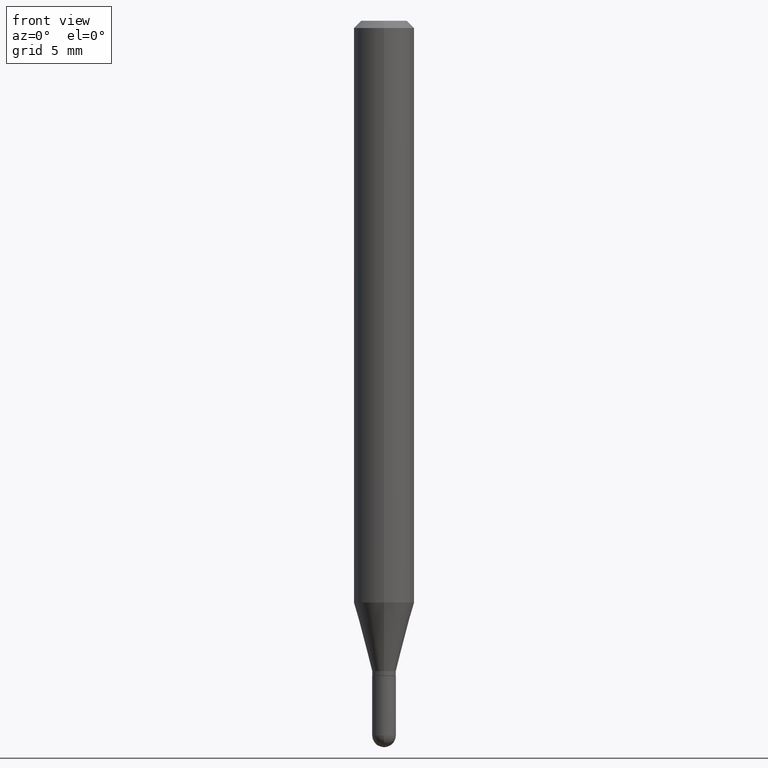
[diagram: clean part render]
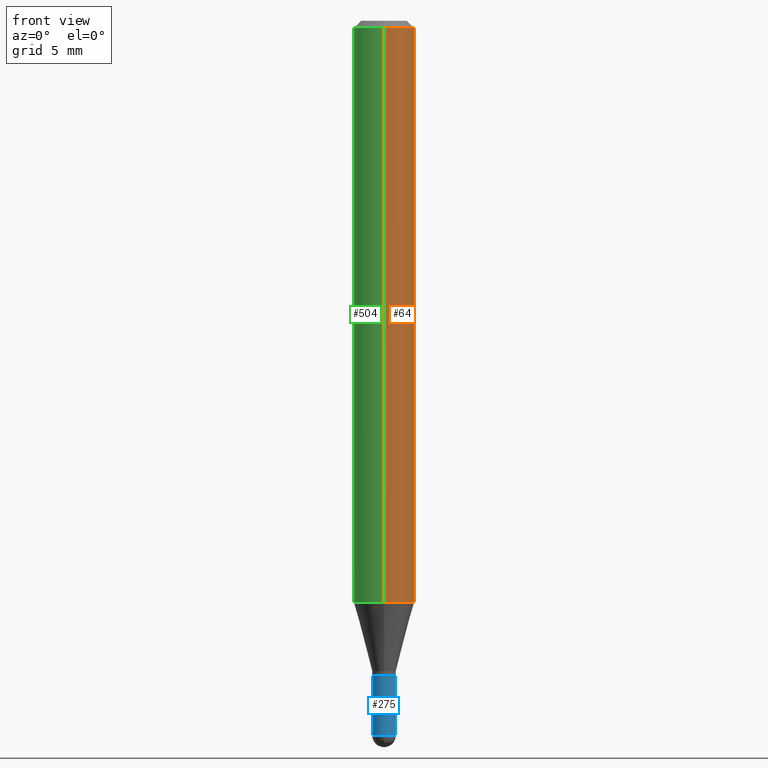
[diagram: same view with three faces highlighted in distinct colors, each labeled with its STEP entity id]
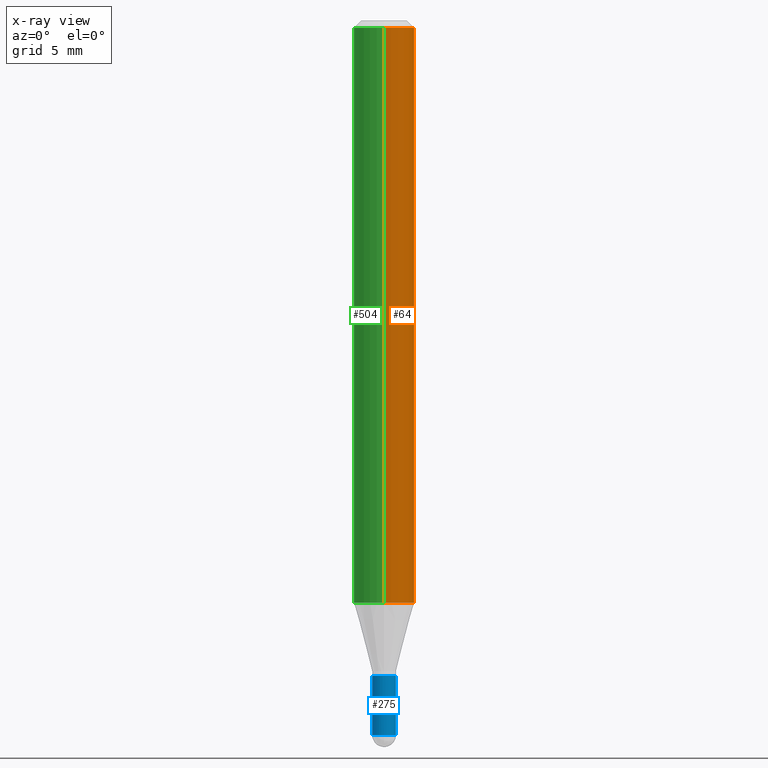
[diagram: x-ray of the same camera — body ghosted, the three highlighted faces saturated]
A machine part, front view with three faces highlighted in distinct colors.
The next image is the same camera in x-ray (body ghosted, the three faces saturated) — at least one of them is partly hidden behind the body in this view.
Their STEP definitions:

[orange] entity #64 — the highlighted cylindrical surface (edge-blend (fillet) strip) has radius 1.5875 mm, axis along (-0, 0, 1).
#24 = VERTEX_POINT ( 'NONE', #389 ) ;
#32 = AXIS2_PLACEMENT_3D ( 'NONE', #330, #252, #124 ) ;
#45 = FACE_OUTER_BOUND ( 'NONE', #405, .T. ) ;
#64 = ADVANCED_FACE ( 'NONE', ( #45 ), #160, .T. ) ;
#92 = DIRECTION ( 'NONE',  ( -2.445471927444732928E-29, 3.491476869021752385E-15, 1.000000000000000000 ) ) ;
#98 = CARTESIAN_POINT ( 'NONE',  ( -4.364351673553916201E-16, -0.06250000000000000000, 2.182173043138594994E-16 ) ) ;
#116 = DIRECTION ( 'NONE',  ( -2.445471927444732928E-29, 3.491476869021752385E-15, 1.000000000000000000 ) ) ;
#124 = DIRECTION ( 'NONE',  ( -6.982962677686265922E-15, -1.000000000000000000, 3.483106191921935554E-15 ) ) ;
#144 = CIRCLE ( 'NONE', #487, 0.06250000000000000000 ) ;
#156 = EDGE_CURVE ( 'NONE', #205, #314, #144, .T. ) ;
#160 = CYLINDRICAL_SURFACE ( 'NONE', #349, 0.06250000000000000000 ) ;
#167 = EDGE_CURVE ( 'NONE', #314, #238, #269, .T. ) ;
#190 = CARTESIAN_POINT ( 'NONE',  ( 4.440892098500625669E-16, 0.06250000000000000000, -2.182173043138594994E-16 ) ) ;
#199 = EDGE_CURVE ( 'NONE', #24, #238, #307, .T. ) ;
#205 = VERTEX_POINT ( 'NONE', #324 ) ;
#206 = CARTESIAN_POINT ( 'NONE',  ( 4.440892098500920998E-16, 0.06249999999999995143, -0.01500000000000054588 ) ) ;
#234 = VECTOR ( 'NONE', #342, 39.37007874015748143 ) ;
#238 = VERTEX_POINT ( 'NONE', #206 ) ;
#252 = DIRECTION ( 'NONE',  ( -2.445471927444732928E-29, 3.491476869021752385E-15, 1.000000000000000000 ) ) ;
#269 = LINE ( 'NONE', #190, #234 ) ;
#276 = ORIENTED_EDGE ( 'NONE', *, *, #406, .F. ) ;
#278 = DIRECTION ( 'NONE',  ( -6.982962677686265922E-15, -1.000000000000000000, 3.491476869021751991E-15 ) ) ;
#297 = LINE ( 'NONE', #98, #302 ) ;
#302 = VECTOR ( 'NONE', #458, 39.37007874015748143 ) ;
#307 = CIRCLE ( 'NONE', #32, 0.06250000000000000000 ) ;
#313 = CARTESIAN_POINT ( 'NONE',  ( 0.000000000000000000, 0.000000000000000000, 0.000000000000000000 ) ) ;
#314 = VERTEX_POINT ( 'NONE', #413 ) ;
#324 = CARTESIAN_POINT ( 'NONE',  ( -4.364351673553624323E-16, -0.06250000000000420497, -1.201182069312383138 ) ) ;
#330 = CARTESIAN_POINT ( 'NONE',  ( 3.668207891167179599E-31, -5.237215303532743381E-17, -0.01500000000000032904 ) ) ;
#342 = DIRECTION ( 'NONE',  ( -2.445471927444732928E-29, 3.491476869021752385E-15, 1.000000000000000000 ) ) ;
#349 = AXIS2_PLACEMENT_3D ( 'NONE', #313, #116, #278 ) ;
#389 = CARTESIAN_POINT ( 'NONE',  ( -4.364351673553912750E-16, -0.06250000000000005551, -0.01500000000000011047 ) ) ;
#405 = EDGE_LOOP ( 'NONE', ( #434, #423, #438, #276 ) ) ;
#406 = EDGE_CURVE ( 'NONE', #205, #24, #297, .T. ) ;
#413 = CARTESIAN_POINT ( 'NONE',  ( 4.440892098500917054E-16, 0.06249999999999578809, -1.201182069312383804 ) ) ;
#421 = DIRECTION ( 'NONE',  ( -6.982962677686265922E-15, -1.000000000000000000, 4.370956789862821150E-15 ) ) ;
#423 = ORIENTED_EDGE ( 'NONE', *, *, #167, .T. ) ;
#434 = ORIENTED_EDGE ( 'NONE', *, *, #156, .T. ) ;
#438 = ORIENTED_EDGE ( 'NONE', *, *, #199, .F. ) ;
#458 = DIRECTION ( 'NONE',  ( -2.445471927444732928E-29, 3.491476869021752385E-15, 1.000000000000000000 ) ) ;
#487 = AXIS2_PLACEMENT_3D ( 'NONE', #489, #92, #421 ) ;
#489 = CARTESIAN_POINT ( 'NONE',  ( 2.937457030253406908E-29, -4.193899410487870118E-15, -1.201182069312383360 ) ) ;

[blue] entity #275 — the highlighted cylindrical surface (edge-blend (fillet) strip) has radius 0.6223 mm, axis along (-0, 0, 1).
#31 = ORIENTED_EDGE ( 'NONE', *, *, #408, .T. ) ;
#34 = VERTEX_POINT ( 'NONE', #311 ) ;
#44 = DIRECTION ( 'NONE',  ( -2.445468806185136877E-29, 3.491481338843145188E-15, 1.000000000000000000 ) ) ;
#66 = VECTOR ( 'NONE', #162, 39.37007874015748143 ) ;
#69 = DIRECTION ( 'NONE',  ( -2.445468806185136597E-29, 3.491481338843145583E-15, 1.000000000000000000 ) ) ;
#73 = CIRCLE ( 'NONE', #151, 0.02450000000000000441 ) ;
#113 = VERTEX_POINT ( 'NONE', #287 ) ;
#114 = VERTEX_POINT ( 'NONE', #329 ) ;
#115 = VECTOR ( 'NONE', #44, 39.37007874015748143 ) ;
#127 = LINE ( 'NONE', #201, #66 ) ;
#151 = AXIS2_PLACEMENT_3D ( 'NONE', #178, #339, #424 ) ;
#162 = DIRECTION ( 'NONE',  ( -2.445468806185136877E-29, 3.491481338843145188E-15, 1.000000000000000000 ) ) ;
#178 = CARTESIAN_POINT ( 'NONE',  ( 3.608289223526169394E-29, -5.151680715463062135E-15, -1.475500000000000256 ) ) ;
#189 = EDGE_CURVE ( 'NONE', #34, #512, #362, .T. ) ;
#196 = ORIENTED_EDGE ( 'NONE', *, *, #221, .T. ) ;
#201 = CARTESIAN_POINT ( 'NONE',  ( -0.02450000000000000441, 1.740829702612245769E-16, -1.205139097112452116E-30 ) ) ;
#204 = DIRECTION ( 'NONE',  ( 1.000000000000000000, -6.982962677686267499E-15, 4.876176775795936353E-29 ) ) ;
#208 = EDGE_CURVE ( 'NONE', #34, #114, #127, .T. ) ;
#210 = DIRECTION ( 'NONE',  ( -2.445468806185136597E-29, 3.491481338843145583E-15, 1.000000000000000000 ) ) ;
#221 = EDGE_CURVE ( 'NONE', #113, #355, #277, .T. ) ;
#225 = AXIS2_PLACEMENT_3D ( 'NONE', #364, #210, #204 ) ;
#229 = DIRECTION ( 'NONE',  ( 1.000000000000000000, -6.982962677686272233E-15, 0.000000000000000000 ) ) ;
#246 = CYLINDRICAL_SURFACE ( 'NONE', #225, 0.02450000000000000441 ) ;
#254 = DIRECTION ( 'NONE',  ( 1.000000000000000000, -6.982962677686273810E-15, 0.000000000000000000 ) ) ;
#275 = ADVANCED_FACE ( 'NONE', ( #399 ), #246, .T. ) ;
#277 = LINE ( 'NONE', #286, #115 ) ;
#286 = CARTESIAN_POINT ( 'NONE',  ( 0.02450000000000000441, -1.710825856033135867E-16, 1.194663310070004571E-30 ) ) ;
#287 = CARTESIAN_POINT ( 'NONE',  ( 0.02450000000000000441, -5.108910069062233326E-15, -1.475500000000000256 ) ) ;
#300 = DIRECTION ( 'NONE',  ( -2.445468806185136597E-29, 3.491481338843145583E-15, 1.000000000000000000 ) ) ;
#308 = EDGE_CURVE ( 'NONE', #114, #355, #336, .T. ) ;
#310 = CARTESIAN_POINT ( 'NONE',  ( -1.710825856032779154E-16, -0.02450000000000522246, -1.475500000000000256 ) ) ;
#311 = CARTESIAN_POINT ( 'NONE',  ( -0.02450000000000000441, -4.763744513197695359E-15, -1.475500000000000256 ) ) ;
#329 = CARTESIAN_POINT ( 'NONE',  ( -0.02450000000000000094, -4.763744513197695359E-15, -1.352999999999999980 ) ) ;
#331 = CARTESIAN_POINT ( 'NONE',  ( 3.308719294768489645E-29, -4.723974251454776406E-15, -1.352999999999999980 ) ) ;
#336 = CIRCLE ( 'NONE', #411, 0.02450000000000000094 ) ;
#339 = DIRECTION ( 'NONE',  ( -2.445468806185136597E-29, 3.491481338843145583E-15, 1.000000000000000000 ) ) ;
#348 = EDGE_LOOP ( 'NONE', ( #505, #394, #31, #196, #439 ) ) ;
#355 = VERTEX_POINT ( 'NONE', #486 ) ;
#362 = CIRCLE ( 'NONE', #471, 0.02450000000000000441 ) ;
#364 = CARTESIAN_POINT ( 'NONE',  ( 0.000000000000000000, 0.000000000000000000, 0.000000000000000000 ) ) ;
#388 = CARTESIAN_POINT ( 'NONE',  ( 3.608289223526169394E-29, -5.151680715463062135E-15, -1.475500000000000256 ) ) ;
#394 = ORIENTED_EDGE ( 'NONE', *, *, #189, .T. ) ;
#399 = FACE_OUTER_BOUND ( 'NONE', #348, .T. ) ;
#408 = EDGE_CURVE ( 'NONE', #512, #113, #73, .T. ) ;
#411 = AXIS2_PLACEMENT_3D ( 'NONE', #331, #300, #254 ) ;
#424 = DIRECTION ( 'NONE',  ( 1.000000000000000000, -6.982962677686272233E-15, 0.000000000000000000 ) ) ;
#439 = ORIENTED_EDGE ( 'NONE', *, *, #308, .F. ) ;
#471 = AXIS2_PLACEMENT_3D ( 'NONE', #388, #69, #229 ) ;
#486 = CARTESIAN_POINT ( 'NONE',  ( 0.02450000000000000094, -4.895056837058090067E-15, -1.352999999999999980 ) ) ;
#505 = ORIENTED_EDGE ( 'NONE', *, *, #208, .F. ) ;
#512 = VERTEX_POINT ( 'NONE', #310 ) ;

[green] entity #504 — the highlighted cylindrical surface (edge-blend (fillet) strip) has radius 1.5875 mm, axis along (-0, 0, 1).
#8 = AXIS2_PLACEMENT_3D ( 'NONE', #350, #235, #193 ) ;
#24 = VERTEX_POINT ( 'NONE', #389 ) ;
#42 = EDGE_LOOP ( 'NONE', ( #109, #279, #435, #241 ) ) ;
#98 = CARTESIAN_POINT ( 'NONE',  ( -4.364351673553916201E-16, -0.06250000000000000000, 2.182173043138594994E-16 ) ) ;
#102 = DIRECTION ( 'NONE',  ( -2.445471927444732928E-29, 3.491476869021752385E-15, 1.000000000000000000 ) ) ;
#109 = ORIENTED_EDGE ( 'NONE', *, *, #167, .F. ) ;
#110 = CIRCLE ( 'NONE', #509, 0.06250000000000000000 ) ;
#132 = CARTESIAN_POINT ( 'NONE',  ( 3.668207891167179599E-31, -5.237215303532743381E-17, -0.01500000000000032904 ) ) ;
#152 = FACE_OUTER_BOUND ( 'NONE', #42, .T. ) ;
#167 = EDGE_CURVE ( 'NONE', #314, #238, #269, .T. ) ;
#190 = CARTESIAN_POINT ( 'NONE',  ( 4.440892098500625669E-16, 0.06250000000000000000, -2.182173043138594994E-16 ) ) ;
#193 = DIRECTION ( 'NONE',  ( -6.982962677686265922E-15, -1.000000000000000000, 3.491476869021751991E-15 ) ) ;
#205 = VERTEX_POINT ( 'NONE', #324 ) ;
#206 = CARTESIAN_POINT ( 'NONE',  ( 4.440892098500920998E-16, 0.06249999999999995143, -0.01500000000000054588 ) ) ;
#234 = VECTOR ( 'NONE', #342, 39.37007874015748143 ) ;
#235 = DIRECTION ( 'NONE',  ( -2.445471927444732928E-29, 3.491476869021752385E-15, 1.000000000000000000 ) ) ;
#238 = VERTEX_POINT ( 'NONE', #206 ) ;
#241 = ORIENTED_EDGE ( 'NONE', *, *, #425, .F. ) ;
#257 = DIRECTION ( 'NONE',  ( -6.982962677686265922E-15, -1.000000000000000000, 3.483106191921935554E-15 ) ) ;
#269 = LINE ( 'NONE', #190, #234 ) ;
#279 = ORIENTED_EDGE ( 'NONE', *, *, #319, .T. ) ;
#297 = LINE ( 'NONE', #98, #302 ) ;
#302 = VECTOR ( 'NONE', #458, 39.37007874015748143 ) ;
#314 = VERTEX_POINT ( 'NONE', #413 ) ;
#319 = EDGE_CURVE ( 'NONE', #314, #205, #110, .T. ) ;
#324 = CARTESIAN_POINT ( 'NONE',  ( -4.364351673553624323E-16, -0.06250000000000420497, -1.201182069312383138 ) ) ;
#342 = DIRECTION ( 'NONE',  ( -2.445471927444732928E-29, 3.491476869021752385E-15, 1.000000000000000000 ) ) ;
#346 = CARTESIAN_POINT ( 'NONE',  ( 2.937457030253406908E-29, -4.193899410487870118E-15, -1.201182069312383360 ) ) ;
#350 = CARTESIAN_POINT ( 'NONE',  ( 0.000000000000000000, 0.000000000000000000, 0.000000000000000000 ) ) ;
#369 = CIRCLE ( 'NONE', #387, 0.06250000000000000000 ) ;
#387 = AXIS2_PLACEMENT_3D ( 'NONE', #132, #102, #257 ) ;
#389 = CARTESIAN_POINT ( 'NONE',  ( -4.364351673553912750E-16, -0.06250000000000005551, -0.01500000000000011047 ) ) ;
#406 = EDGE_CURVE ( 'NONE', #205, #24, #297, .T. ) ;
#413 = CARTESIAN_POINT ( 'NONE',  ( 4.440892098500917054E-16, 0.06249999999999578809, -1.201182069312383804 ) ) ;
#420 = DIRECTION ( 'NONE',  ( -6.982962677686265922E-15, -1.000000000000000000, 4.370956789862821150E-15 ) ) ;
#425 = EDGE_CURVE ( 'NONE', #238, #24, #369, .T. ) ;
#435 = ORIENTED_EDGE ( 'NONE', *, *, #406, .T. ) ;
#458 = DIRECTION ( 'NONE',  ( -2.445471927444732928E-29, 3.491476869021752385E-15, 1.000000000000000000 ) ) ;
#493 = DIRECTION ( 'NONE',  ( -2.445471927444732928E-29, 3.491476869021752385E-15, 1.000000000000000000 ) ) ;
#495 = CYLINDRICAL_SURFACE ( 'NONE', #8, 0.06250000000000000000 ) ;
#504 = ADVANCED_FACE ( 'NONE', ( #152 ), #495, .T. ) ;
#509 = AXIS2_PLACEMENT_3D ( 'NONE', #346, #493, #420 ) ;